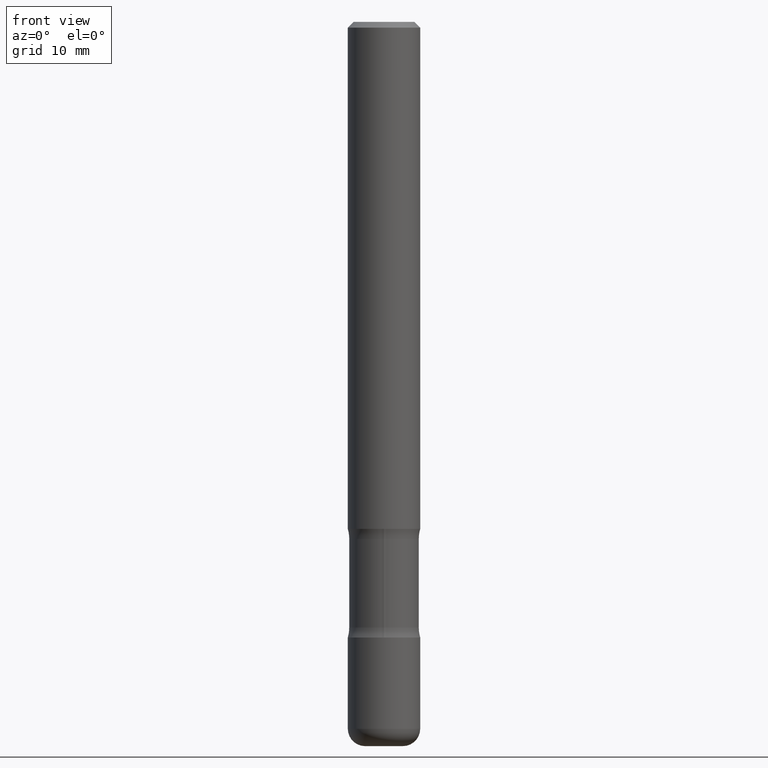
[diagram: clean part render]
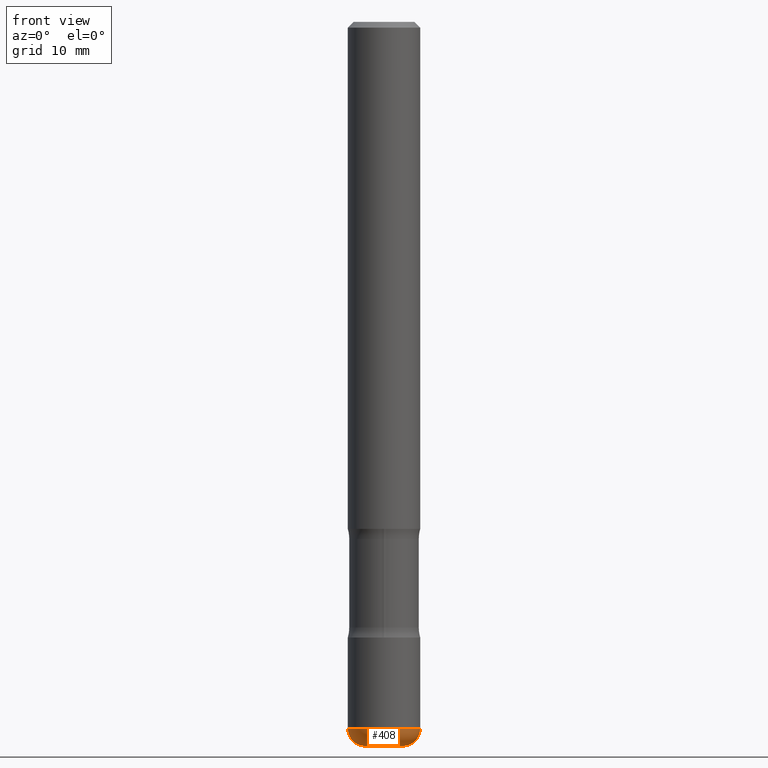
[diagram: same view with one face highlighted and labeled with its STEP entity id]
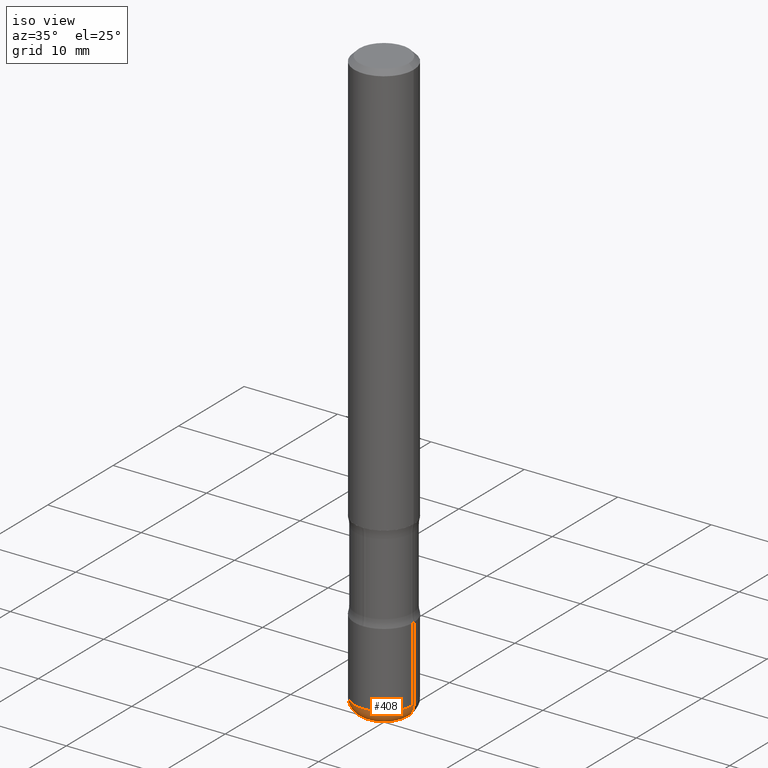
[diagram: same view with one face highlighted and labeled with its STEP entity id]
A machine part, front view. The second image highlights one B-rep face of the part: STEP entity #408.
A second angle (iso view) of the same face is appended — the face is thin or edge-on in the first view.
In plain terms, the highlighted toroidal blend (fillet) surface has major radius 1.651 mm and minor (blend) radius 1.524 mm.
Its self-contained STEP definition (entity closure, byte-faithful):
#62 = DIRECTION ( 'NONE',  ( -2.445468806185136597E-29, 3.491481338843145583E-15, 1.000000000000000000 ) ) ;
#76 = EDGE_CURVE ( 'NONE', #803, #806, #706, .T. ) ;
#120 = FACE_OUTER_BOUND ( 'NONE', #768, .T. ) ;
#151 = DIRECTION ( 'NONE',  ( -2.445468806185136597E-29, 3.491481338843145583E-15, 1.000000000000000000 ) ) ;
#177 = EDGE_CURVE ( 'NONE', #806, #621, #402, .T. ) ;
#185 = CARTESIAN_POINT ( 'NONE',  ( 0.06500000000000000222, -8.973107040826881753E-15, -2.440000000000000391 ) ) ;
#197 = EDGE_CURVE ( 'NONE', #803, #699, #694, .T. ) ;
#205 = ORIENTED_EDGE ( 'NONE', *, *, #197, .T. ) ;
#214 = AXIS2_PLACEMENT_3D ( 'NONE', #355, #62, #303 ) ;
#219 = DIRECTION ( 'NONE',  ( -2.445468806185136597E-29, 3.491481338843145583E-15, 1.000000000000000000 ) ) ;
#229 = DIRECTION ( 'NONE',  ( -6.982962677686266711E-15, -1.000000000000000000, 3.491481338843145583E-15 ) ) ;
#255 = DIRECTION ( 'NONE',  ( 7.105427357601001859E-15, 1.000000000000000000, -3.491481338843145583E-15 ) ) ;
#280 = EDGE_CURVE ( 'NONE', #699, #621, #579, .T. ) ;
#303 = DIRECTION ( 'NONE',  ( 1.000000000000000000, -6.982962677686264344E-15, 4.883557194083112340E-29 ) ) ;
#308 = TOROIDAL_SURFACE ( 'NONE', #214, 0.06500000000000000222, 0.05999999999999968553 ) ;
#339 = CARTESIAN_POINT ( 'NONE',  ( 0.1249999999999998473, -9.392084801488056809E-15, -2.440000000000000391 ) ) ;
#345 = AXIS2_PLACEMENT_3D ( 'NONE', #438, #255, #446 ) ;
#355 = CARTESIAN_POINT ( 'NONE',  ( 5.966943887091733341E-29, -8.519214466777275048E-15, -2.440000000000000391 ) ) ;
#388 = AXIS2_PLACEMENT_3D ( 'NONE', #599, #151, #786 ) ;
#402 = CIRCLE ( 'NONE', #412, 0.1250000000000000000 ) ;
#408 = ADVANCED_FACE ( 'NONE', ( #120 ), #308, .T. ) ;
#412 = AXIS2_PLACEMENT_3D ( 'NONE', #529, #219, #537 ) ;
#419 = CARTESIAN_POINT ( 'NONE',  ( 0.06500000000000001610, -9.182595921157470070E-15, -2.499999999999999556 ) ) ;
#438 = CARTESIAN_POINT ( 'NONE',  ( -0.06500000000000000222, -8.057361688533210306E-15, -2.440000000000000391 ) ) ;
#446 = DIRECTION ( 'NONE',  ( -1.000000000000000000, 7.105427357600994759E-15, 0.000000000000000000 ) ) ;
#513 = AXIS2_PLACEMENT_3D ( 'NONE', #185, #229, #744 ) ;
#529 = CARTESIAN_POINT ( 'NONE',  ( 5.966943887091733341E-29, -8.519214466777275048E-15, -2.440000000000000391 ) ) ;
#535 = ORIENTED_EDGE ( 'NONE', *, *, #177, .F. ) ;
#537 = DIRECTION ( 'NONE',  ( 1.000000000000000000, -6.982962677686262766E-15, 0.000000000000000000 ) ) ;
#579 = CIRCLE ( 'NONE', #513, 0.05999999999999969247 ) ;
#599 = CARTESIAN_POINT ( 'NONE',  ( 6.113672015462840371E-29, -8.728703347107863365E-15, -2.499999999999999556 ) ) ;
#621 = VERTEX_POINT ( 'NONE', #339 ) ;
#694 = CIRCLE ( 'NONE', #388, 0.06500000000000001610 ) ;
#699 = VERTEX_POINT ( 'NONE', #419 ) ;
#702 = ORIENTED_EDGE ( 'NONE', *, *, #76, .F. ) ;
#706 = CIRCLE ( 'NONE', #345, 0.05999999999999969247 ) ;
#714 = CARTESIAN_POINT ( 'NONE',  ( -0.1249999999999998473, -7.631036047077151393E-15, -2.440000000000000391 ) ) ;
#744 = DIRECTION ( 'NONE',  ( 1.000000000000000000, -6.982962677686272233E-15, 0.000000000000000000 ) ) ;
#766 = ORIENTED_EDGE ( 'NONE', *, *, #280, .T. ) ;
#768 = EDGE_LOOP ( 'NONE', ( #702, #205, #766, #535 ) ) ;
#784 = CARTESIAN_POINT ( 'NONE',  ( -0.06500000000000001610, -7.948943307970475008E-15, -2.499999999999999556 ) ) ;
#786 = DIRECTION ( 'NONE',  ( 1.000000000000000000, -6.982962677686272233E-15, 0.000000000000000000 ) ) ;
#803 = VERTEX_POINT ( 'NONE', #784 ) ;
#806 = VERTEX_POINT ( 'NONE', #714 ) ;